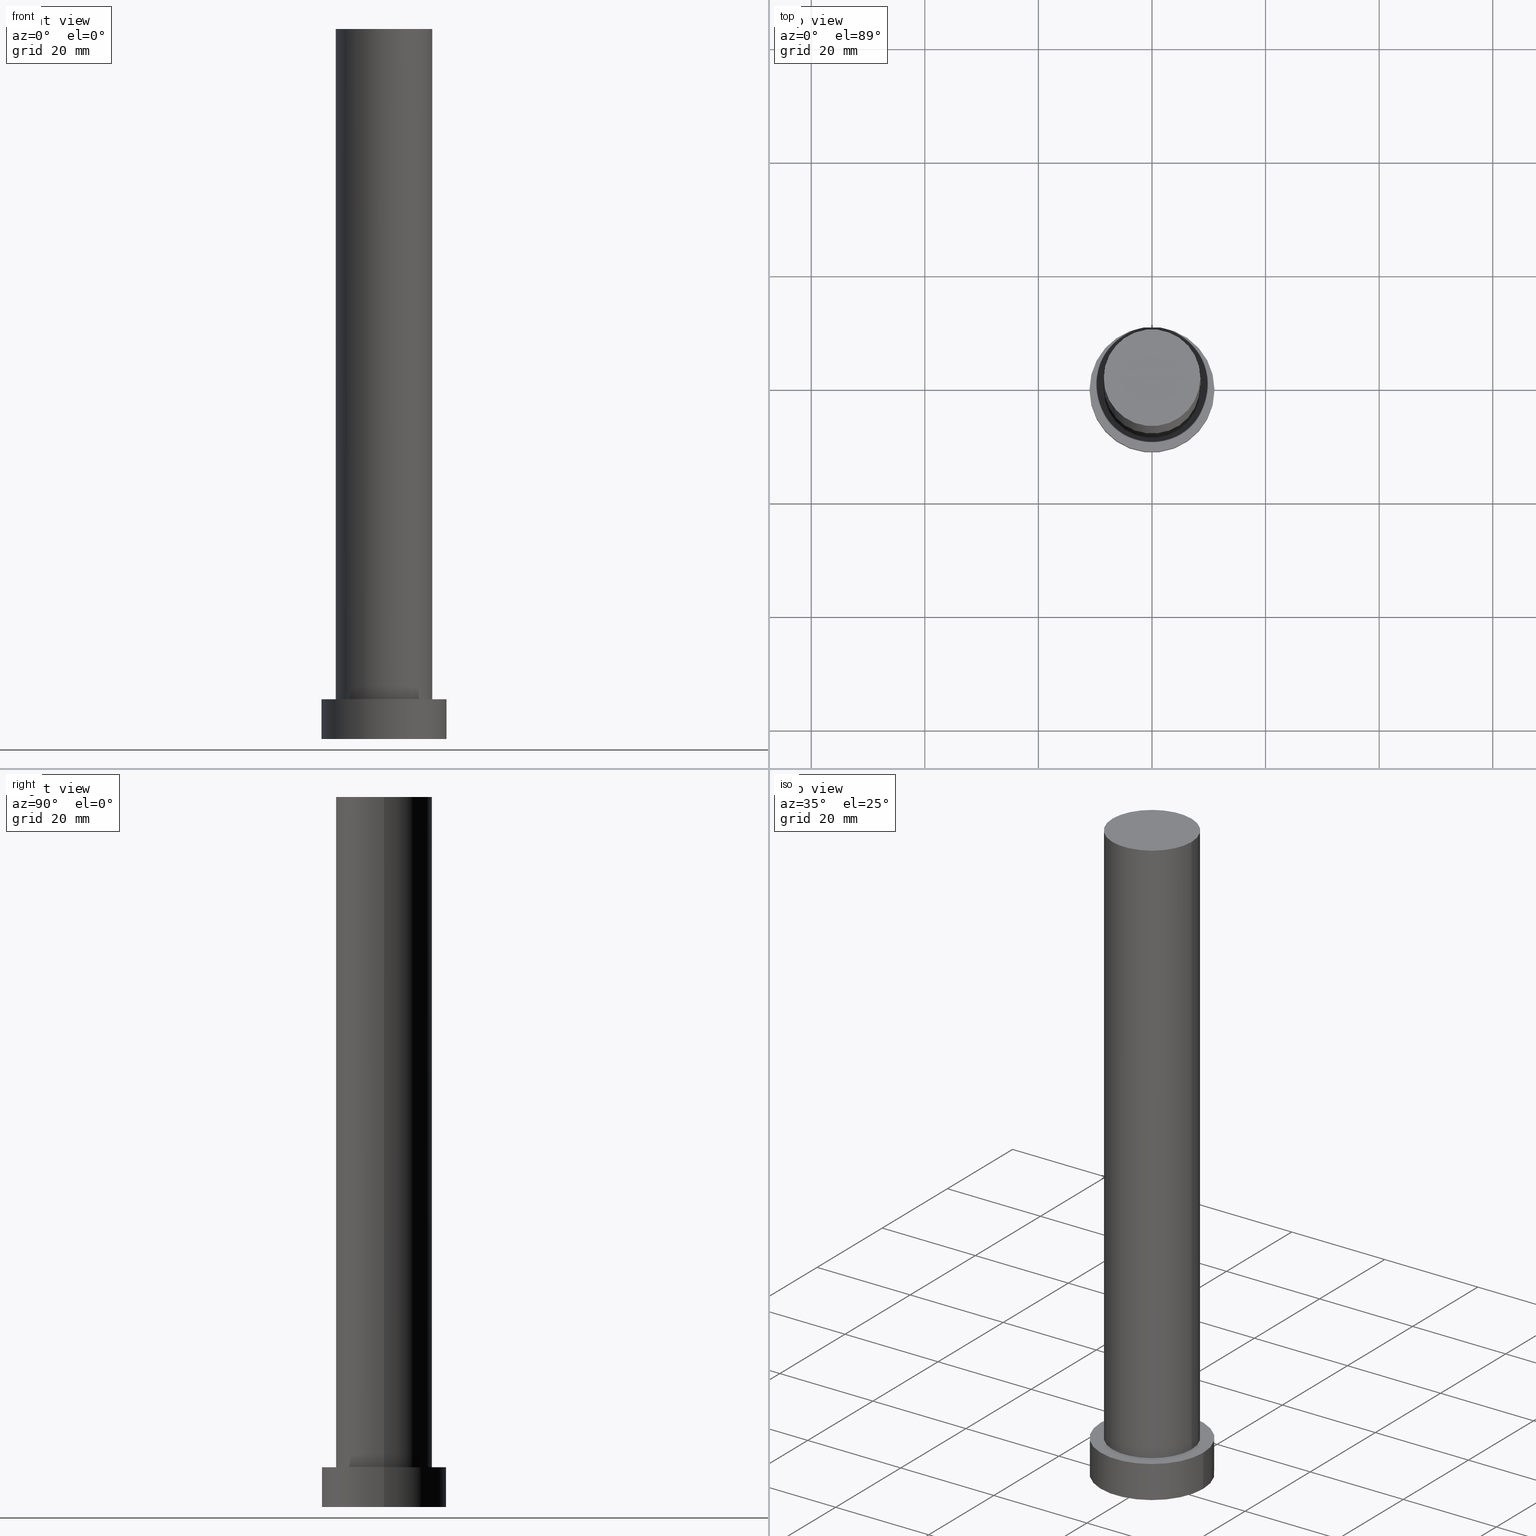
[diagram: canonical four-view strip — front | top / right | iso, engineering-drawing reading convention]
A machine part, canonical four-view strip (front | top / right | iso — engineering-drawing reading convention). The complete STEP part file that produces these views, byte-faithful:
ISO-10303-21;
HEADER;
FILE_DESCRIPTION (( 'STEP AP203' ),
    '1' );
FILE_NAME ('dd07.STEP',
    '2023-02-13T08:47:29',
    ( '' ),
    ( '' ),
    'SwSTEP 2.0',
    'SolidWorks 2019',
    '' );
FILE_SCHEMA (( 'CONFIG_CONTROL_DESIGN' ));
ENDSEC;

DATA;
#1 = CARTESIAN_POINT ( 'NONE',  ( 8.500000000000000000, 1.040949779275250140E-15, 7.000000000000000000 ) ) ;
#2 = COORDINATED_UNIVERSAL_TIME_OFFSET ( 1, 0, .AHEAD. ) ;
#3 = CIRCLE ( 'NONE', #32, 8.500000000000000000 ) ;
#4 = PERSON_AND_ORGANIZATION ( #180, #129 ) ;
#5 = ORIENTED_EDGE ( 'NONE', *, *, #108, .T. ) ;
#6 = CARTESIAN_POINT ( 'NONE',  ( 11.00000000000000000, 1.347111479062088405E-15, 7.000000000000000000 ) ) ;
#7 = FACE_OUTER_BOUND ( 'NONE', #200, .T. ) ;
#8 = DIRECTION ( 'NONE',  ( 0.000000000000000000, 0.000000000000000000, 1.000000000000000000 ) ) ;
#9 = LOCAL_TIME ( 9, 47, 29.00000000000000000, #53 ) ;
#10 = PERSON_AND_ORGANIZATION_ROLE ( 'design_supplier' ) ;
#11 = ADVANCED_BREP_SHAPE_REPRESENTATION ( 'dd07', ( #106, #49 ), #202 ) ;
#12 = DIRECTION ( 'NONE',  ( -0.000000000000000000, -0.000000000000000000, -1.000000000000000000 ) ) ;
#13 = APPROVAL_ROLE ( '' ) ;
#14 = EDGE_CURVE ( 'NONE', #73, #159, #57, .T. ) ;
#15 = VECTOR ( 'NONE', #12, 1000.000000000000000 ) ;
#16 = CC_DESIGN_APPROVAL ( #65, ( #183 ) ) ;
#17 = DIRECTION ( 'NONE',  ( -1.000000000000000000, 0.000000000000000000, 0.000000000000000000 ) ) ;
#18 = DIRECTION ( 'NONE',  ( 1.000000000000000000, 0.000000000000000000, 0.000000000000000000 ) ) ;
#19 = ORIENTED_EDGE ( 'NONE', *, *, #166, .F. ) ;
#20 = ORIENTED_EDGE ( 'NONE', *, *, #198, .T. ) ;
#21 = COORDINATED_UNIVERSAL_TIME_OFFSET ( 1, 0, .AHEAD. ) ;
#22 = APPLICATION_PROTOCOL_DEFINITION ( 'international standard', 'config_control_design', 1994, #228 ) ;
#23 = VERTEX_POINT ( 'NONE', #1 ) ;
#24 = PRODUCT ( 'dd07', 'dd07', '', ( #209 ) ) ;
#25 = EDGE_CURVE ( 'NONE', #42, #23, #234, .T. ) ;
#26 = DESIGN_CONTEXT ( 'detailed design', #30, 'design' ) ;
#27 = AXIS2_PLACEMENT_3D ( 'NONE', #199, #29, #84 ) ;
#28 = CYLINDRICAL_SURFACE ( 'NONE', #211, 8.500000000000000000 ) ;
#29 = DIRECTION ( 'NONE',  ( 0.000000000000000000, 0.000000000000000000, 1.000000000000000000 ) ) ;
#30 = APPLICATION_CONTEXT ( 'configuration controlled 3d designs of mechanical parts and assemblies' ) ;
#31 =( LENGTH_UNIT ( ) NAMED_UNIT ( * ) SI_UNIT ( .MILLI., .METRE. ) );
#32 = AXIS2_PLACEMENT_3D ( 'NONE', #102, #62, #125 ) ;
#33 = CALENDAR_DATE ( 2023, 13, 2 ) ;
#34 = ADVANCED_FACE ( 'NONE', ( #174 ), #188, .T. ) ;
#35 = DIRECTION ( 'NONE',  ( -0.000000000000000000, -0.000000000000000000, -1.000000000000000000 ) ) ;
#36 = PERSON_AND_ORGANIZATION_ROLE ( 'classification_officer' ) ;
#37 = CALENDAR_DATE ( 2023, 13, 2 ) ;
#38 = DIRECTION ( 'NONE',  ( -0.000000000000000000, -0.000000000000000000, -1.000000000000000000 ) ) ;
#39 = LINE ( 'NONE', #243, #15 ) ;
#40 = PERSON_AND_ORGANIZATION_ROLE ( 'creator' ) ;
#41 = DIRECTION ( 'NONE',  ( 0.000000000000000000, 0.000000000000000000, 1.000000000000000000 ) ) ;
#42 = VERTEX_POINT ( 'NONE', #120 ) ;
#43 = APPROVAL_STATUS ( 'not_yet_approved' ) ;
#44 = ORIENTED_EDGE ( 'NONE', *, *, #201, .F. ) ;
#45 = CIRCLE ( 'NONE', #181, 8.500000000000000000 ) ;
#46 = ORIENTED_EDGE ( 'NONE', *, *, #14, .F. ) ;
#47 = CARTESIAN_POINT ( 'NONE',  ( 0.000000000000000000, 0.000000000000000000, 7.000000000000000000 ) ) ;
#48 = DIRECTION ( 'NONE',  ( -1.000000000000000000, 0.000000000000000000, 0.000000000000000000 ) ) ;
#49 = AXIS2_PLACEMENT_3D ( 'NONE', #71, #121, #18 ) ;
#50 = FACE_OUTER_BOUND ( 'NONE', #208, .T. ) ;
#51 = CC_DESIGN_PERSON_AND_ORGANIZATION_ASSIGNMENT ( #157, #239, ( #183 ) ) ;
#52 = DIRECTION ( 'NONE',  ( -0.000000000000000000, -0.000000000000000000, -1.000000000000000000 ) ) ;
#53 = COORDINATED_UNIVERSAL_TIME_OFFSET ( 1, 0, .AHEAD. ) ;
#54 = CIRCLE ( 'NONE', #220, 8.500000000000000000 ) ;
#55 = PERSON_AND_ORGANIZATION ( #180, #129 ) ;
#56 = PLANE ( 'NONE',  #107 ) ;
#57 = LINE ( 'NONE', #156, #91 ) ;
#58 = ORIENTED_EDGE ( 'NONE', *, *, #158, .T. ) ;
#59 = SHAPE_DEFINITION_REPRESENTATION ( #153, #11 ) ;
#60 = COORDINATED_UNIVERSAL_TIME_OFFSET ( 1, 0, .AHEAD. ) ;
#61 = CYLINDRICAL_SURFACE ( 'NONE', #81, 11.00000000000000000 ) ;
#62 = DIRECTION ( 'NONE',  ( 0.000000000000000000, 0.000000000000000000, 1.000000000000000000 ) ) ;
#63 = ADVANCED_FACE ( 'NONE', ( #213, #93 ), #56, .T. ) ;
#64 = CARTESIAN_POINT ( 'NONE',  ( 11.00000000000000000, 1.347111479062088405E-15, 0.000000000000000000 ) ) ;
#65 = APPROVAL ( #252, 'NEUR�EN�' ) ;
#66 = CIRCLE ( 'NONE', #132, 8.500000000000000000 ) ;
#67 = CARTESIAN_POINT ( 'NONE',  ( 0.000000000000000000, 0.000000000000000000, 125.0000000000000000 ) ) ;
#68 = DIRECTION ( 'NONE',  ( 1.000000000000000000, 0.000000000000000000, 0.000000000000000000 ) ) ;
#69 = AXIS2_PLACEMENT_3D ( 'NONE', #177, #41, #251 ) ;
#70 = VERTEX_POINT ( 'NONE', #240 ) ;
#71 = CARTESIAN_POINT ( 'NONE',  ( 0.000000000000000000, 0.000000000000000000, 0.000000000000000000 ) ) ;
#72 = ORIENTED_EDGE ( 'NONE', *, *, #83, .T. ) ;
#73 = VERTEX_POINT ( 'NONE', #210 ) ;
#74 = APPROVAL_STATUS ( 'not_yet_approved' ) ;
#75 = APPROVAL ( #74, 'NEUR�EN�' ) ;
#76 = EDGE_LOOP ( 'NONE', ( #58, #5 ) ) ;
#77 = CIRCLE ( 'NONE', #110, 11.00000000000000000 ) ;
#78 = DIRECTION ( 'NONE',  ( -0.000000000000000000, -0.000000000000000000, -1.000000000000000000 ) ) ;
#79 = PRODUCT_RELATED_PRODUCT_CATEGORY ( 'detail', '', ( #24 ) ) ;
#80 = VERTEX_POINT ( 'NONE', #253 ) ;
#81 = AXIS2_PLACEMENT_3D ( 'NONE', #136, #38, #141 ) ;
#82 = LOCAL_TIME ( 9, 47, 29.00000000000000000, #60 ) ;
#83 = EDGE_CURVE ( 'NONE', #80, #196, #39, .T. ) ;
#84 = DIRECTION ( 'NONE',  ( 1.000000000000000000, 0.000000000000000000, -0.000000000000000000 ) ) ;
#85 = CARTESIAN_POINT ( 'NONE',  ( 0.000000000000000000, 0.000000000000000000, 7.000000000000000000 ) ) ;
#86 = AXIS2_PLACEMENT_3D ( 'NONE', #94, #35, #17 ) ;
#87 = DIRECTION ( 'NONE',  ( -0.000000000000000000, -0.000000000000000000, -1.000000000000000000 ) ) ;
#88 = SECURITY_CLASSIFICATION_LEVEL ( 'unclassified' ) ;
#89 = ORIENTED_EDGE ( 'NONE', *, *, #25, .T. ) ;
#90 = APPROVAL_DATE_TIME ( #95, #65 ) ;
#91 = VECTOR ( 'NONE', #78, 1000.000000000000000 ) ;
#92 = CARTESIAN_POINT ( 'NONE',  ( 0.000000000000000000, 0.000000000000000000, 125.0000000000000000 ) ) ;
#93 = FACE_OUTER_BOUND ( 'NONE', #254, .T. ) ;
#94 = CARTESIAN_POINT ( 'NONE',  ( 0.000000000000000000, 0.000000000000000000, 125.0000000000000000 ) ) ;
#95 = DATE_AND_TIME ( #37, #9 ) ;
#96 = EDGE_LOOP ( 'NONE', ( #226, #101 ) ) ;
#97 = EDGE_LOOP ( 'NONE', ( #244, #162, #218, #142 ) ) ;
#98 = VECTOR ( 'NONE', #169, 1000.000000000000000 ) ;
#99 = DATE_AND_TIME ( #118, #100 ) ;
#100 = LOCAL_TIME ( 9, 47, 29.00000000000000000, #21 ) ;
#101 = ORIENTED_EDGE ( 'NONE', *, *, #151, .F. ) ;
#102 = CARTESIAN_POINT ( 'NONE',  ( 0.000000000000000000, 0.000000000000000000, 125.0000000000000000 ) ) ;
#103 = ADVANCED_FACE ( 'NONE', ( #192 ), #61, .T. ) ;
#104 = UNCERTAINTY_MEASURE_WITH_UNIT (LENGTH_MEASURE( 1.000000000000000082E-05 ), #31, 'distance_accuracy_value', 'NONE');
#105 =( NAMED_UNIT ( * ) SI_UNIT ( $, .STERADIAN. ) SOLID_ANGLE_UNIT ( ) );
#106 = MANIFOLD_SOLID_BREP ( 'P�idat vysunut�m3', #176 ) ;
#107 = AXIS2_PLACEMENT_3D ( 'NONE', #135, #217, #115 ) ;
#108 = EDGE_CURVE ( 'NONE', #42, #73, #45, .T. ) ;
#109 = CARTESIAN_POINT ( 'NONE',  ( 0.000000000000000000, 0.000000000000000000, 7.000000000000000000 ) ) ;
#110 = AXIS2_PLACEMENT_3D ( 'NONE', #117, #113, #165 ) ;
#111 = APPROVAL_PERSON_ORGANIZATION ( #55, #65, #232 ) ;
#112 =( NAMED_UNIT ( * ) PLANE_ANGLE_UNIT ( ) SI_UNIT ( $, .RADIAN. ) );
#113 = DIRECTION ( 'NONE',  ( 0.000000000000000000, 0.000000000000000000, 1.000000000000000000 ) ) ;
#114 = PERSON_AND_ORGANIZATION ( #180, #129 ) ;
#115 = DIRECTION ( 'NONE',  ( 1.000000000000000000, 0.000000000000000000, -0.000000000000000000 ) ) ;
#116 = CIRCLE ( 'NONE', #246, 11.00000000000000000 ) ;
#117 = CARTESIAN_POINT ( 'NONE',  ( 0.000000000000000000, 0.000000000000000000, 0.000000000000000000 ) ) ;
#118 = CALENDAR_DATE ( 2023, 13, 2 ) ;
#119 = EDGE_CURVE ( 'NONE', #70, #80, #128, .T. ) ;
#120 = CARTESIAN_POINT ( 'NONE',  ( 8.500000000000000000, 1.040949779275250140E-15, 125.0000000000000000 ) ) ;
#121 = DIRECTION ( 'NONE',  ( 0.000000000000000000, 0.000000000000000000, 1.000000000000000000 ) ) ;
#122 = CARTESIAN_POINT ( 'NONE',  ( 0.000000000000000000, 0.000000000000000000, 0.000000000000000000 ) ) ;
#123 = ORIENTED_EDGE ( 'NONE', *, *, #166, .T. ) ;
#124 = APPROVAL ( #43, 'NEUR�EN�' ) ;
#125 = DIRECTION ( 'NONE',  ( 1.000000000000000000, 0.000000000000000000, 0.000000000000000000 ) ) ;
#126 = CC_DESIGN_PERSON_AND_ORGANIZATION_ASSIGNMENT ( #4, #10, ( #229 ) ) ;
#127 = CARTESIAN_POINT ( 'NONE',  ( 0.000000000000000000, 0.000000000000000000, 7.000000000000000000 ) ) ;
#128 = CIRCLE ( 'NONE', #69, 11.00000000000000000 ) ;
#129 = ORGANIZATION ( 'NEUR�EN�', 'NEUR�EN�', '' ) ;
#130 = PLANE ( 'NONE',  #194 ) ;
#131 = CARTESIAN_POINT ( 'NONE',  ( 0.000000000000000000, 0.000000000000000000, 125.0000000000000000 ) ) ;
#132 = AXIS2_PLACEMENT_3D ( 'NONE', #85, #185, #68 ) ;
#133 = PERSON_AND_ORGANIZATION ( #180, #129 ) ;
#134 = DATE_TIME_ROLE ( 'creation_date' ) ;
#135 = CARTESIAN_POINT ( 'NONE',  ( 0.000000000000000000, 0.000000000000000000, 7.000000000000000000 ) ) ;
#136 = CARTESIAN_POINT ( 'NONE',  ( 0.000000000000000000, 0.000000000000000000, 7.000000000000000000 ) ) ;
#137 = CALENDAR_DATE ( 2023, 13, 2 ) ;
#138 = DATE_AND_TIME ( #33, #221 ) ;
#139 = CARTESIAN_POINT ( 'NONE',  ( 8.500000000000000000, 1.040949779275250140E-15, 125.0000000000000000 ) ) ;
#140 = CALENDAR_DATE ( 2023, 13, 2 ) ;
#141 = DIRECTION ( 'NONE',  ( -1.000000000000000000, 0.000000000000000000, 0.000000000000000000 ) ) ;
#142 = ORIENTED_EDGE ( 'NONE', *, *, #201, .T. ) ;
#143 = AXIS2_PLACEMENT_3D ( 'NONE', #122, #163, #237 ) ;
#144 = EDGE_CURVE ( 'NONE', #196, #160, #245, .T. ) ;
#145 = ORIENTED_EDGE ( 'NONE', *, *, #198, .F. ) ;
#146 = LINE ( 'NONE', #6, #98 ) ;
#147 = AXIS2_PLACEMENT_3D ( 'NONE', #109, #87, #182 ) ;
#148 = DIRECTION ( 'NONE',  ( 0.000000000000000000, 0.000000000000000000, 1.000000000000000000 ) ) ;
#149 = CC_DESIGN_APPROVAL ( #75, ( #229 ) ) ;
#150 = FACE_OUTER_BOUND ( 'NONE', #96, .T. ) ;
#151 = EDGE_CURVE ( 'NONE', #160, #196, #77, .T. ) ;
#152 = PERSON_AND_ORGANIZATION_ROLE ( 'design_owner' ) ;
#153 = PRODUCT_DEFINITION_SHAPE ( 'NONE', 'NONE',  #183 ) ;
#154 = EDGE_LOOP ( 'NONE', ( #44, #145 ) ) ;
#155 = PERSON_AND_ORGANIZATION ( #180, #129 ) ;
#156 = CARTESIAN_POINT ( 'NONE',  ( -8.500000000000000000, 0.000000000000000000, 125.0000000000000000 ) ) ;
#157 = PERSON_AND_ORGANIZATION ( #180, #129 ) ;
#158 = EDGE_CURVE ( 'NONE', #73, #42, #3, .T. ) ;
#159 = VERTEX_POINT ( 'NONE', #167 ) ;
#160 = VERTEX_POINT ( 'NONE', #64 ) ;
#161 = DATE_AND_TIME ( #137, #179 ) ;
#162 = ORIENTED_EDGE ( 'NONE', *, *, #158, .F. ) ;
#163 = DIRECTION ( 'NONE',  ( 0.000000000000000000, 0.000000000000000000, 1.000000000000000000 ) ) ;
#164 = ORIENTED_EDGE ( 'NONE', *, *, #195, .F. ) ;
#165 = DIRECTION ( 'NONE',  ( 1.000000000000000000, 0.000000000000000000, 0.000000000000000000 ) ) ;
#166 = EDGE_CURVE ( 'NONE', #70, #160, #146, .T. ) ;
#167 = CARTESIAN_POINT ( 'NONE',  ( -8.500000000000000000, 0.000000000000000000, 7.000000000000000000 ) ) ;
#168 = VECTOR ( 'NONE', #172, 1000.000000000000000 ) ;
#169 = DIRECTION ( 'NONE',  ( -0.000000000000000000, -0.000000000000000000, -1.000000000000000000 ) ) ;
#170 = DIRECTION ( 'NONE',  ( 1.000000000000000000, 0.000000000000000000, -0.000000000000000000 ) ) ;
#171 = DIRECTION ( 'NONE',  ( 1.000000000000000000, 0.000000000000000000, 0.000000000000000000 ) ) ;
#172 = DIRECTION ( 'NONE',  ( -0.000000000000000000, -0.000000000000000000, -1.000000000000000000 ) ) ;
#173 = EDGE_LOOP ( 'NONE', ( #222, #123, #178, #191 ) ) ;
#174 = FACE_OUTER_BOUND ( 'NONE', #97, .T. ) ;
#175 = DATE_AND_TIME ( #140, #82 ) ;
#176 = CLOSED_SHELL ( 'NONE', ( #204, #103, #186, #63, #250, #34, #236 ) ) ;
#177 = CARTESIAN_POINT ( 'NONE',  ( 0.000000000000000000, 0.000000000000000000, 7.000000000000000000 ) ) ;
#178 = ORIENTED_EDGE ( 'NONE', *, *, #151, .T. ) ;
#179 = LOCAL_TIME ( 9, 47, 29.00000000000000000, #2 ) ;
#180 = PERSON ( 'NEUR�EN�', 'NEUR�EN�', 'NEUR�EN�', ('NEUR�EN�'), ('NEUR�EN�'), ('NEUR�EN�') ) ;
#181 = AXIS2_PLACEMENT_3D ( 'NONE', #92, #216, #171 ) ;
#182 = DIRECTION ( 'NONE',  ( -1.000000000000000000, 0.000000000000000000, 0.000000000000000000 ) ) ;
#183 = PRODUCT_DEFINITION ( 'NEZN�M�', '', #229, #26 ) ;
#184 = FACE_OUTER_BOUND ( 'NONE', #76, .T. ) ;
#185 = DIRECTION ( 'NONE',  ( 0.000000000000000000, 0.000000000000000000, 1.000000000000000000 ) ) ;
#186 = ADVANCED_FACE ( 'NONE', ( #7 ), #224, .T. ) ;
#187 = COORDINATED_UNIVERSAL_TIME_OFFSET ( 1, 0, .AHEAD. ) ;
#188 = CYLINDRICAL_SURFACE ( 'NONE', #86, 8.500000000000000000 ) ;
#189 = PERSON_AND_ORGANIZATION ( #180, #129 ) ;
#190 = APPROVAL_PERSON_ORGANIZATION ( #212, #75, #242 ) ;
#191 = ORIENTED_EDGE ( 'NONE', *, *, #83, .F. ) ;
#192 = FACE_OUTER_BOUND ( 'NONE', #173, .T. ) ;
#193 = ORIENTED_EDGE ( 'NONE', *, *, #144, .T. ) ;
#194 = AXIS2_PLACEMENT_3D ( 'NONE', #131, #203, #170 ) ;
#195 = EDGE_CURVE ( 'NONE', #80, #70, #116, .T. ) ;
#196 = VERTEX_POINT ( 'NONE', #205 ) ;
#197 = ORIENTED_EDGE ( 'NONE', *, *, #119, .T. ) ;
#198 = EDGE_CURVE ( 'NONE', #23, #159, #66, .T. ) ;
#199 = CARTESIAN_POINT ( 'NONE',  ( 0.000000000000000000, 0.000000000000000000, 0.000000000000000000 ) ) ;
#200 = EDGE_LOOP ( 'NONE', ( #19, #164, #72, #193 ) ) ;
#201 = EDGE_CURVE ( 'NONE', #159, #23, #54, .T. ) ;
#202 =( GEOMETRIC_REPRESENTATION_CONTEXT ( 3 ) GLOBAL_UNCERTAINTY_ASSIGNED_CONTEXT ( ( #104 ) ) GLOBAL_UNIT_ASSIGNED_CONTEXT ( ( #31, #112, #105 ) ) REPRESENTATION_CONTEXT ( 'NONE', 'WORKASPACE' ) );
#203 = DIRECTION ( 'NONE',  ( 0.000000000000000000, 0.000000000000000000, 1.000000000000000000 ) ) ;
#204 = ADVANCED_FACE ( 'NONE', ( #50 ), #28, .T. ) ;
#205 = CARTESIAN_POINT ( 'NONE',  ( -11.00000000000000000, 0.000000000000000000, 0.000000000000000000 ) ) ;
#206 = SECURITY_CLASSIFICATION ( '', '', #88 ) ;
#207 = CC_DESIGN_DATE_AND_TIME_ASSIGNMENT ( #161, #238, ( #206 ) ) ;
#208 = EDGE_LOOP ( 'NONE', ( #223, #89, #20, #46 ) ) ;
#209 = MECHANICAL_CONTEXT ( 'NONE', #228, 'mechanical' ) ;
#210 = CARTESIAN_POINT ( 'NONE',  ( -8.500000000000000000, 0.000000000000000000, 125.0000000000000000 ) ) ;
#211 = AXIS2_PLACEMENT_3D ( 'NONE', #67, #52, #48 ) ;
#212 = PERSON_AND_ORGANIZATION ( #180, #129 ) ;
#213 = FACE_BOUND ( 'NONE', #154, .T. ) ;
#214 = CC_DESIGN_DATE_AND_TIME_ASSIGNMENT ( #138, #134, ( #183 ) ) ;
#215 = APPROVAL_DATE_TIME ( #175, #75 ) ;
#216 = DIRECTION ( 'NONE',  ( 0.000000000000000000, 0.000000000000000000, 1.000000000000000000 ) ) ;
#217 = DIRECTION ( 'NONE',  ( 0.000000000000000000, 0.000000000000000000, 1.000000000000000000 ) ) ;
#218 = ORIENTED_EDGE ( 'NONE', *, *, #14, .T. ) ;
#219 = APPROVAL_DATE_TIME ( #99, #124 ) ;
#220 = AXIS2_PLACEMENT_3D ( 'NONE', #127, #148, #225 ) ;
#221 = LOCAL_TIME ( 9, 47, 29.00000000000000000, #187 ) ;
#222 = ORIENTED_EDGE ( 'NONE', *, *, #119, .F. ) ;
#223 = ORIENTED_EDGE ( 'NONE', *, *, #108, .F. ) ;
#224 = CYLINDRICAL_SURFACE ( 'NONE', #147, 11.00000000000000000 ) ;
#225 = DIRECTION ( 'NONE',  ( 1.000000000000000000, 0.000000000000000000, 0.000000000000000000 ) ) ;
#226 = ORIENTED_EDGE ( 'NONE', *, *, #144, .F. ) ;
#227 = CC_DESIGN_PERSON_AND_ORGANIZATION_ASSIGNMENT ( #155, #152, ( #24 ) ) ;
#228 = APPLICATION_CONTEXT ( 'configuration controlled 3d designs of mechanical parts and assemblies' ) ;
#229 = PRODUCT_DEFINITION_FORMATION_WITH_SPECIFIED_SOURCE ( 'LIBOVOLN�', '', #24, .NOT_KNOWN. ) ;
#230 = PLANE ( 'NONE',  #27 ) ;
#231 = CC_DESIGN_PERSON_AND_ORGANIZATION_ASSIGNMENT ( #133, #40, ( #229 ) ) ;
#232 = APPROVAL_ROLE ( '' ) ;
#233 = CC_DESIGN_SECURITY_CLASSIFICATION ( #206, ( #229 ) ) ;
#234 = LINE ( 'NONE', #139, #168 ) ;
#235 = APPLICATION_PROTOCOL_DEFINITION ( 'international standard', 'config_control_design', 1994, #30 ) ;
#236 = ADVANCED_FACE ( 'NONE', ( #184 ), #130, .T. ) ;
#237 = DIRECTION ( 'NONE',  ( 1.000000000000000000, 0.000000000000000000, 0.000000000000000000 ) ) ;
#238 = DATE_TIME_ROLE ( 'classification_date' ) ;
#239 = PERSON_AND_ORGANIZATION_ROLE ( 'creator' ) ;
#240 = CARTESIAN_POINT ( 'NONE',  ( 11.00000000000000000, 1.347111479062088405E-15, 7.000000000000000000 ) ) ;
#241 = ORIENTED_EDGE ( 'NONE', *, *, #195, .T. ) ;
#242 = APPROVAL_ROLE ( '' ) ;
#243 = CARTESIAN_POINT ( 'NONE',  ( -11.00000000000000000, 0.000000000000000000, 7.000000000000000000 ) ) ;
#244 = ORIENTED_EDGE ( 'NONE', *, *, #25, .F. ) ;
#245 = CIRCLE ( 'NONE', #143, 11.00000000000000000 ) ;
#246 = AXIS2_PLACEMENT_3D ( 'NONE', #47, #8, #249 ) ;
#247 = CC_DESIGN_APPROVAL ( #124, ( #206 ) ) ;
#248 = APPROVAL_PERSON_ORGANIZATION ( #189, #124, #13 ) ;
#249 = DIRECTION ( 'NONE',  ( 1.000000000000000000, 0.000000000000000000, 0.000000000000000000 ) ) ;
#250 = ADVANCED_FACE ( 'NONE', ( #150 ), #230, .F. ) ;
#251 = DIRECTION ( 'NONE',  ( 1.000000000000000000, 0.000000000000000000, 0.000000000000000000 ) ) ;
#252 = APPROVAL_STATUS ( 'not_yet_approved' ) ;
#253 = CARTESIAN_POINT ( 'NONE',  ( -11.00000000000000000, 0.000000000000000000, 7.000000000000000000 ) ) ;
#254 = EDGE_LOOP ( 'NONE', ( #241, #197 ) ) ;
#255 = CC_DESIGN_PERSON_AND_ORGANIZATION_ASSIGNMENT ( #114, #36, ( #206 ) ) ;
ENDSEC;
END-ISO-10303-21;
